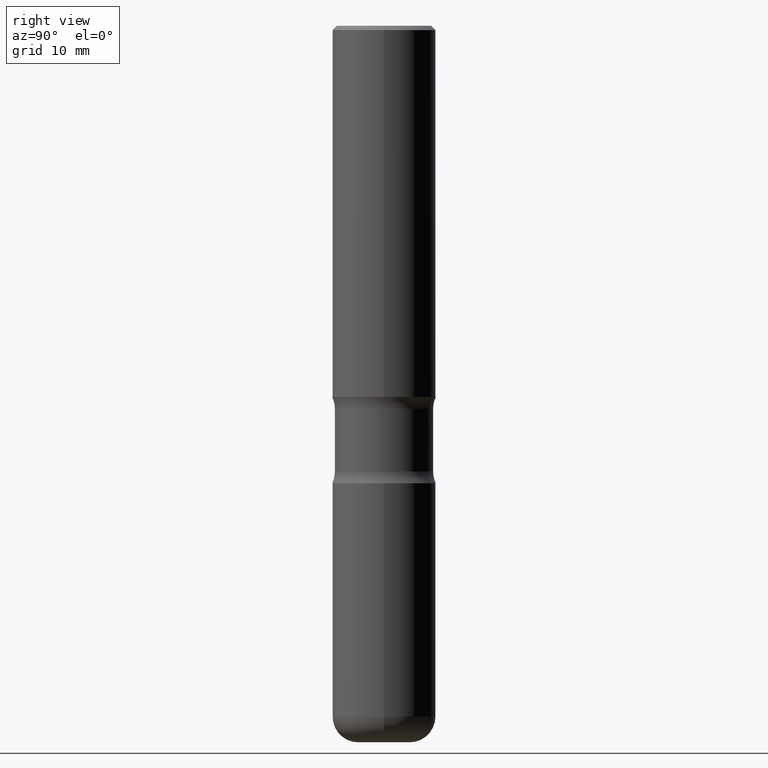
[diagram: clean part render]
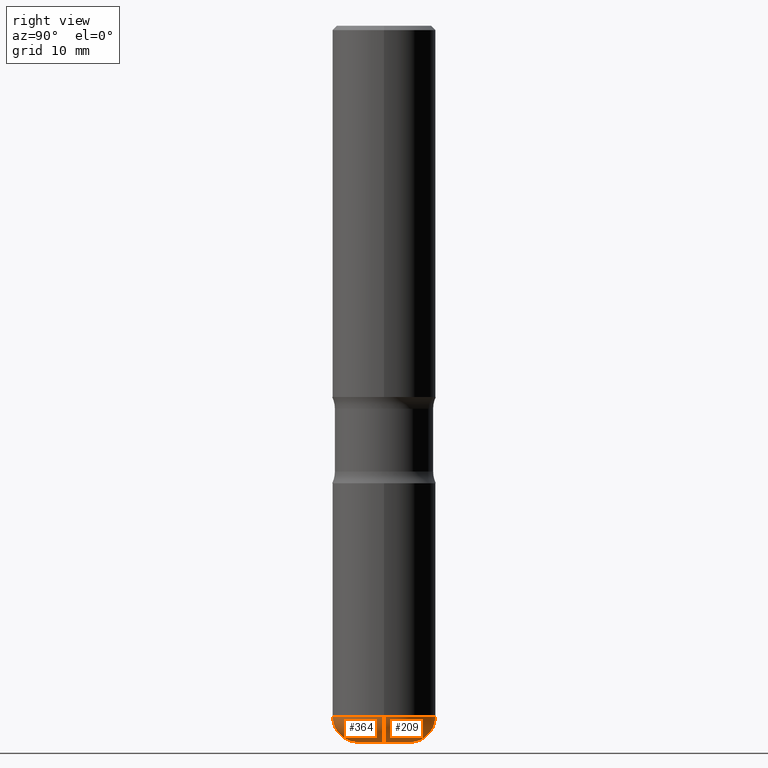
[diagram: same view with one multi-face feature highlighted, each face labeled with its STEP entity id]
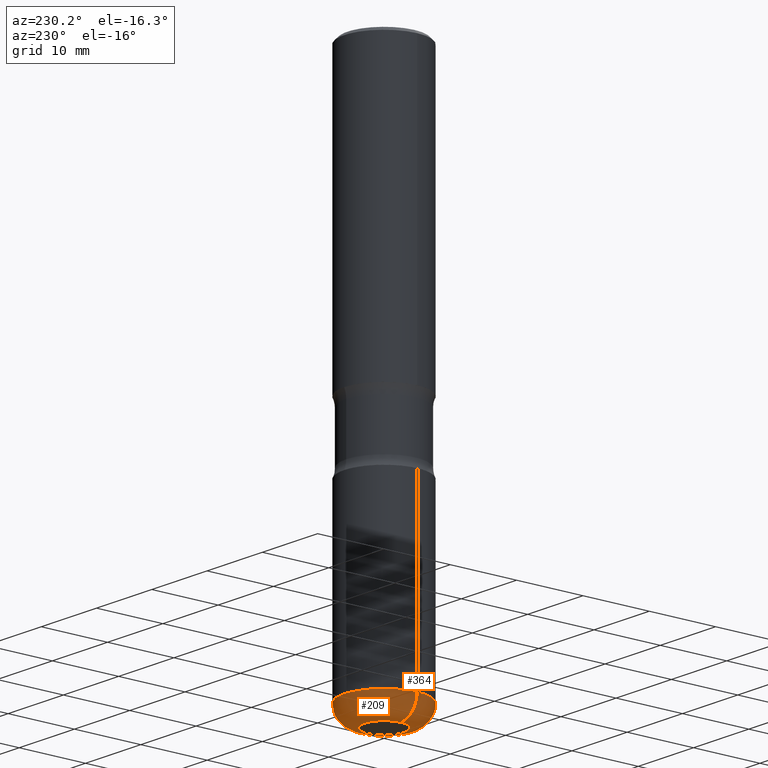
[diagram: same view with one multi-face feature highlighted, each face labeled with its STEP entity id]
A machine part, right view. The highlighted faces form ONE feature: a constant-radius fillet chain: 2 tangent blend faces with common blend radius 2.9972 mm. The faces share edges in the B-rep.
A second angle (auxiliary view) of the same feature is appended — it is thin or edge-on in the first view.
Their STEP definitions:
[1] entity #209 (Torus):
#1 = DIRECTION ( 'NONE',  ( 7.105427357601001859E-15, 1.000000000000000000, -3.491481338843145583E-15 ) ) ;
#34 = CIRCLE ( 'NONE', #311, 0.1180000000000000770 ) ;
#39 = DIRECTION ( 'NONE',  ( -2.445468806185136597E-29, 3.491481338843145583E-15, 1.000000000000000000 ) ) ;
#43 = DIRECTION ( 'NONE',  ( 1.000000000000000000, -6.982962677686258822E-15, 0.000000000000000000 ) ) ;
#46 = CARTESIAN_POINT ( 'NONE',  ( -0.1182000000000003326, -1.015725725928581524E-14, -3.149700000000000166 ) ) ;
#53 = CIRCLE ( 'NONE', #122, 0.2362000000000002709 ) ;
#56 = ORIENTED_EDGE ( 'NONE', *, *, #296, .T. ) ;
#79 = DIRECTION ( 'NONE',  ( 1.000000000000000000, -6.982962677686261977E-15, 0.000000000000000000 ) ) ;
#80 = EDGE_CURVE ( 'NONE', #91, #191, #539, .T. ) ;
#91 = VERTEX_POINT ( 'NONE', #552 ) ;
#117 = CARTESIAN_POINT ( 'NONE',  ( 7.702493098841325496E-29, -1.099711877295425582E-14, -3.149700000000000166 ) ) ;
#122 = AXIS2_PLACEMENT_3D ( 'NONE', #423, #468, #166 ) ;
#124 = DIRECTION ( 'NONE',  ( 1.000000000000000000, -6.982962677686269077E-15, 4.883557194083113462E-29 ) ) ;
#131 = CARTESIAN_POINT ( 'NONE',  ( -0.1182000000000003326, -9.944034444179100274E-15, -3.267700000000000049 ) ) ;
#166 = DIRECTION ( 'NONE',  ( 1.000000000000000000, -6.982962677686265133E-15, 0.000000000000000000 ) ) ;
#191 = VERTEX_POINT ( 'NONE', #427 ) ;
#202 = CARTESIAN_POINT ( 'NONE',  ( 0.1182000000000003326, -1.182250496145677426E-14, -3.149700000000000166 ) ) ;
#209 = ADVANCED_FACE ( 'NONE', ( #511 ), #547, .T. ) ;
#230 = EDGE_CURVE ( 'NONE', #191, #366, #53, .T. ) ;
#256 = ORIENTED_EDGE ( 'NONE', *, *, #273, .T. ) ;
#273 = EDGE_CURVE ( 'NONE', #91, #302, #465, .T. ) ;
#296 = EDGE_CURVE ( 'NONE', #302, #366, #34, .T. ) ;
#301 = CARTESIAN_POINT ( 'NONE',  ( -0.2362000000000003264, -9.318816831088897849E-15, -3.149700000000000166 ) ) ;
#302 = VERTEX_POINT ( 'NONE', #131 ) ;
#311 = AXIS2_PLACEMENT_3D ( 'NONE', #46, #1, #486 ) ;
#329 = AXIS2_PLACEMENT_3D ( 'NONE', #355, #392, #43 ) ;
#337 = DIRECTION ( 'NONE',  ( -6.982962677686266711E-15, -1.000000000000000000, 3.491481338843145583E-15 ) ) ;
#355 = CARTESIAN_POINT ( 'NONE',  ( 7.991058417971171713E-29, -1.140911357093774644E-14, -3.267700000000000049 ) ) ;
#366 = VERTEX_POINT ( 'NONE', #301 ) ;
#392 = DIRECTION ( 'NONE',  ( -2.445468806185136597E-29, 3.491481338843145583E-15, 1.000000000000000000 ) ) ;
#423 = CARTESIAN_POINT ( 'NONE',  ( 7.702493098841325496E-29, -1.099711877295425582E-14, -3.149700000000000166 ) ) ;
#427 = CARTESIAN_POINT ( 'NONE',  ( 0.2362000000000003264, -1.264649455742375392E-14, -3.149700000000000166 ) ) ;
#451 = EDGE_LOOP ( 'NONE', ( #256, #56, #476, #559 ) ) ;
#465 = CIRCLE ( 'NONE', #329, 0.1182000000000003326 ) ;
#468 = DIRECTION ( 'NONE',  ( -2.445468806185136597E-29, 3.491481338843145583E-15, 1.000000000000000000 ) ) ;
#476 = ORIENTED_EDGE ( 'NONE', *, *, #230, .F. ) ;
#484 = AXIS2_PLACEMENT_3D ( 'NONE', #202, #337, #79 ) ;
#486 = DIRECTION ( 'NONE',  ( -1.000000000000000000, 7.105427357600993181E-15, 0.000000000000000000 ) ) ;
#511 = FACE_OUTER_BOUND ( 'NONE', #451, .T. ) ;
#529 = AXIS2_PLACEMENT_3D ( 'NONE', #117, #39, #124 ) ;
#539 = CIRCLE ( 'NONE', #484, 0.1180000000000000770 ) ;
#547 = TOROIDAL_SURFACE ( 'NONE', #529, 0.1182000000000003326, 0.1180000000000000770 ) ;
#552 = CARTESIAN_POINT ( 'NONE',  ( 0.1182000000000003326, -1.223449975944026488E-14, -3.267700000000000049 ) ) ;
#559 = ORIENTED_EDGE ( 'NONE', *, *, #80, .F. ) ;
[2] entity #364 (Torus):
#1 = DIRECTION ( 'NONE',  ( 7.105427357601001859E-15, 1.000000000000000000, -3.491481338843145583E-15 ) ) ;
#8 = CARTESIAN_POINT ( 'NONE',  ( 7.702493098841325496E-29, -1.099711877295425582E-14, -3.149700000000000166 ) ) ;
#34 = CIRCLE ( 'NONE', #311, 0.1180000000000000770 ) ;
#44 = ORIENTED_EDGE ( 'NONE', *, *, #80, .T. ) ;
#46 = CARTESIAN_POINT ( 'NONE',  ( -0.1182000000000003326, -1.015725725928581524E-14, -3.149700000000000166 ) ) ;
#69 = ORIENTED_EDGE ( 'NONE', *, *, #475, .F. ) ;
#79 = DIRECTION ( 'NONE',  ( 1.000000000000000000, -6.982962677686261977E-15, 0.000000000000000000 ) ) ;
#80 = EDGE_CURVE ( 'NONE', #91, #191, #539, .T. ) ;
#91 = VERTEX_POINT ( 'NONE', #552 ) ;
#127 = DIRECTION ( 'NONE',  ( 1.000000000000000000, -6.982962677686269077E-15, 4.883557194083113462E-29 ) ) ;
#131 = CARTESIAN_POINT ( 'NONE',  ( -0.1182000000000003326, -9.944034444179100274E-15, -3.267700000000000049 ) ) ;
#143 = ORIENTED_EDGE ( 'NONE', *, *, #296, .F. ) ;
#168 = EDGE_CURVE ( 'NONE', #302, #91, #505, .T. ) ;
#172 = FACE_OUTER_BOUND ( 'NONE', #363, .T. ) ;
#191 = VERTEX_POINT ( 'NONE', #427 ) ;
#202 = CARTESIAN_POINT ( 'NONE',  ( 0.1182000000000003326, -1.182250496145677426E-14, -3.149700000000000166 ) ) ;
#204 = DIRECTION ( 'NONE',  ( 1.000000000000000000, -6.982962677686258822E-15, 0.000000000000000000 ) ) ;
#217 = DIRECTION ( 'NONE',  ( -2.445468806185136597E-29, 3.491481338843145583E-15, 1.000000000000000000 ) ) ;
#227 = DIRECTION ( 'NONE',  ( 1.000000000000000000, -6.982962677686265133E-15, 0.000000000000000000 ) ) ;
#271 = DIRECTION ( 'NONE',  ( -2.445468806185136597E-29, 3.491481338843145583E-15, 1.000000000000000000 ) ) ;
#296 = EDGE_CURVE ( 'NONE', #302, #366, #34, .T. ) ;
#301 = CARTESIAN_POINT ( 'NONE',  ( -0.2362000000000003264, -9.318816831088897849E-15, -3.149700000000000166 ) ) ;
#302 = VERTEX_POINT ( 'NONE', #131 ) ;
#311 = AXIS2_PLACEMENT_3D ( 'NONE', #46, #1, #486 ) ;
#330 = CIRCLE ( 'NONE', #397, 0.2362000000000002709 ) ;
#337 = DIRECTION ( 'NONE',  ( -6.982962677686266711E-15, -1.000000000000000000, 3.491481338843145583E-15 ) ) ;
#338 = TOROIDAL_SURFACE ( 'NONE', #348, 0.1182000000000003326, 0.1180000000000000770 ) ;
#348 = AXIS2_PLACEMENT_3D ( 'NONE', #8, #217, #127 ) ;
#361 = AXIS2_PLACEMENT_3D ( 'NONE', #549, #380, #204 ) ;
#363 = EDGE_LOOP ( 'NONE', ( #143, #522, #44, #69 ) ) ;
#364 = ADVANCED_FACE ( 'NONE', ( #172 ), #338, .T. ) ;
#366 = VERTEX_POINT ( 'NONE', #301 ) ;
#380 = DIRECTION ( 'NONE',  ( -2.445468806185136597E-29, 3.491481338843145583E-15, 1.000000000000000000 ) ) ;
#397 = AXIS2_PLACEMENT_3D ( 'NONE', #405, #271, #227 ) ;
#405 = CARTESIAN_POINT ( 'NONE',  ( 7.702493098841325496E-29, -1.099711877295425582E-14, -3.149700000000000166 ) ) ;
#427 = CARTESIAN_POINT ( 'NONE',  ( 0.2362000000000003264, -1.264649455742375392E-14, -3.149700000000000166 ) ) ;
#475 = EDGE_CURVE ( 'NONE', #366, #191, #330, .T. ) ;
#484 = AXIS2_PLACEMENT_3D ( 'NONE', #202, #337, #79 ) ;
#486 = DIRECTION ( 'NONE',  ( -1.000000000000000000, 7.105427357600993181E-15, 0.000000000000000000 ) ) ;
#505 = CIRCLE ( 'NONE', #361, 0.1182000000000003326 ) ;
#522 = ORIENTED_EDGE ( 'NONE', *, *, #168, .T. ) ;
#539 = CIRCLE ( 'NONE', #484, 0.1180000000000000770 ) ;
#549 = CARTESIAN_POINT ( 'NONE',  ( 7.991058417971171713E-29, -1.140911357093774644E-14, -3.267700000000000049 ) ) ;
#552 = CARTESIAN_POINT ( 'NONE',  ( 0.1182000000000003326, -1.223449975944026488E-14, -3.267700000000000049 ) ) ;